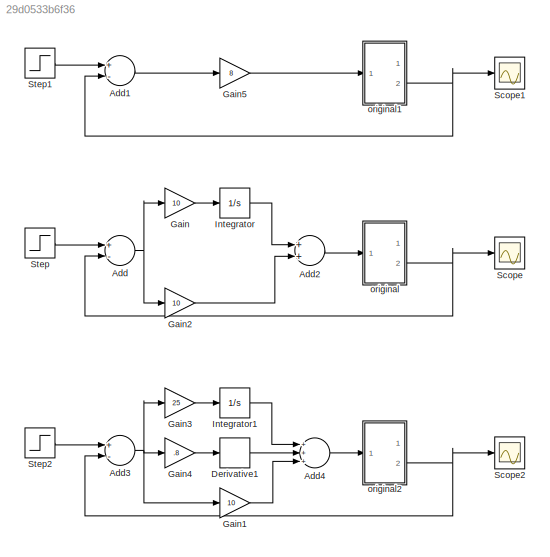
MODEL slx_29d0533b6f36
KIND model
CONFIG AbsTol = auto
CONFIG EnableMultiTasking = off
CONFIG FixedStep = auto
CONFIG MaxStep = auto
CONFIG MinStep = auto
CONFIG RelTol = 1e-3
CONFIG SampleTimeConstraint = Unconstrained
CONFIG Solver = VariableStepAuto
CONFIG SolverName = VariableStepAuto
CONFIG StartTime = 0.0
CONFIG StopTime = 3.0
BLOCK [Sum] Add
  InputSameDT = off
  Inputs = +-
  OutDataTypeStr = Inherit: Inherit via internal rule
  Ports = [2, 1]
  SaturateOnIntegerOverflow = off
BLOCK [Sum] Add1
  InputSameDT = off
  Inputs = +-
  OutDataTypeStr = Inherit: Inherit via internal rule
  Ports = [2, 1]
  SaturateOnIntegerOverflow = off
BLOCK [Sum] Add2
  InputSameDT = off
  OutDataTypeStr = Inherit: Inherit via internal rule
  Ports = [2, 1]
  SaturateOnIntegerOverflow = off
BLOCK [Sum] Add3
  InputSameDT = off
  Inputs = +-
  OutDataTypeStr = Inherit: Inherit via internal rule
  Ports = [2, 1]
  SaturateOnIntegerOverflow = off
BLOCK [Sum] Add4
  InputSameDT = off
  Inputs = +++
  OutDataTypeStr = Inherit: Inherit via internal rule
  Ports = [3, 1]
  SaturateOnIntegerOverflow = off
BLOCK [Derivative] Derivative1
BLOCK [Gain] Gain
  Gain = 10
  OutDataTypeStr = Inherit: Inherit via internal rule
  ParamDataTypeStr = Inherit: Inherit via internal rule
  SaturateOnIntegerOverflow = off
BLOCK [Gain] Gain1
  Gain = 10
  OutDataTypeStr = Inherit: Inherit via internal rule
  ParamDataTypeStr = Inherit: Inherit via internal rule
  SaturateOnIntegerOverflow = off
BLOCK [Gain] Gain2
  Gain = 10
  OutDataTypeStr = Inherit: Inherit via internal rule
  ParamDataTypeStr = Inherit: Inherit via internal rule
  SaturateOnIntegerOverflow = off
BLOCK [Gain] Gain3
  Gain = 25
  OutDataTypeStr = Inherit: Inherit via internal rule
  ParamDataTypeStr = Inherit: Inherit via internal rule
  SaturateOnIntegerOverflow = off
BLOCK [Gain] Gain4
  Gain = .8
  OutDataTypeStr = Inherit: Inherit via internal rule
  ParamDataTypeStr = Inherit: Inherit via internal rule
  SaturateOnIntegerOverflow = off
BLOCK [Gain] Gain5
  Gain = 8
  OutDataTypeStr = Inherit: Inherit via internal rule
  ParamDataTypeStr = Inherit: Inherit via internal rule
  SaturateOnIntegerOverflow = off
BLOCK [Integrator] Integrator
  Ports = [1, 1]
BLOCK [Integrator] Integrator1
  Ports = [1, 1]
BLOCK [Scope] Scope
  NumInputPorts = 1
  Ports = [1]
  ScopeSpecificationString = Simulink.scopes.TimeScopeBlockCfg('CurrentConfiguration', extmgr.ConfigurationSet(extmgr.Configuration('Core','General UI',true),extmgr.Configuration('Core','Source UI',true),extmgr.Configuration('Sources','WiredSimulink',true),extmgr.Configuration('Visuals','Time Domain',true,'SerializedDisplays',{struct('MinYLimReal','-0.13288','MaxYLimReal','1.1959','YLabelReal','','MinYLimMag','0.00000','MaxYL...<+1355ch>
BLOCK [Scope] Scope1
  NumInputPorts = 1
  Ports = [1]
  ScopeSpecificationString = Simulink.scopes.TimeScopeBlockCfg('CurrentConfiguration', extmgr.ConfigurationSet(extmgr.Configuration('Core','General UI',true),extmgr.Configuration('Core','Source UI',true),extmgr.Configuration('Sources','WiredSimulink',true,'DataLoggingVariableName','ScopeData1'),extmgr.Configuration('Visuals','Time Domain',true,'SerializedDisplays',{struct('MinYLimReal','-0.12294','MaxYLimReal','1.10647','YLab...<+1424ch>
BLOCK [Scope] Scope2
  NumInputPorts = 1
  Ports = [1]
  ScopeSpecificationString = Simulink.scopes.TimeScopeBlockCfg('CurrentConfiguration', extmgr.ConfigurationSet(extmgr.Configuration('Core','General UI',true),extmgr.Configuration('Core','Source UI',true),extmgr.Configuration('Sources','WiredSimulink',true,'DataLoggingVariableName','ScopeData2'),extmgr.Configuration('Visuals','Time Domain',true,'SerializedDisplays',{struct('MinYLimReal','-0.13386','MaxYLimReal','1.20476','YLab...<+1399ch>
BLOCK [Step] Step
  SampleTime = 1
BLOCK [Step] Step1
  SampleTime = 1
BLOCK [Step] Step2
  SampleTime = 1
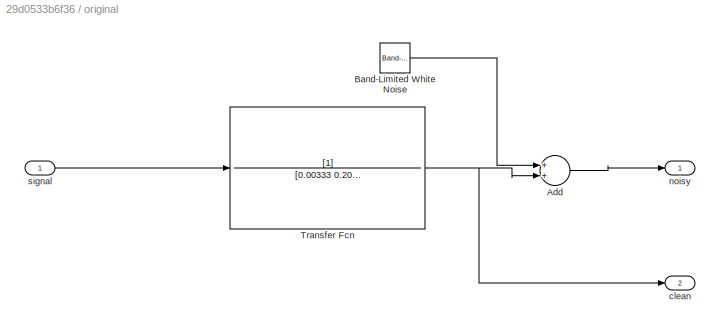
BLOCK [SubSystem] original
  Ports = [1, 2]
  RequestExecContextInheritance = off
  Variant = off
BLOCK [Sum] original/Add
  InputSameDT = off
  OutDataTypeStr = Inherit: Inherit via internal rule
  Ports = [2, 1]
  SaturateOnIntegerOverflow = off
BLOCK [Reference] original/Band-Limited White Noise  REF=simulink/Sources/Band-Limited
White Noise
  Ports = [0, 1]
  SourceBlock = simulink/Sources/Band-Limited\nWhite Noise
  SourceProductBaseCode = SL
  SourceProductName = Simulink
  SourceType = Band-Limited White Noise.
BLOCK [TransferFcn] original/Transfer Fcn
  Denominator = [0.00333 0.201 1]
BLOCK [Outport] original/clean
  IconDisplay = Port number
  Port = 2
BLOCK [Outport] original/noisy
  IconDisplay = Port number
BLOCK [Inport] original/signal
  IconDisplay = Port number
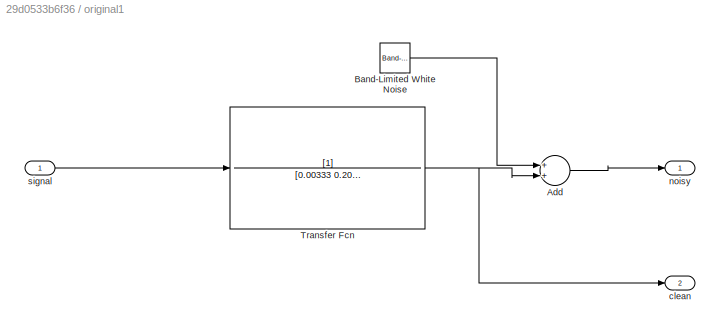
BLOCK [SubSystem] original1
  Ports = [1, 2]
  RequestExecContextInheritance = off
  Variant = off
BLOCK [Sum] original1/Add
  InputSameDT = off
  OutDataTypeStr = Inherit: Inherit via internal rule
  Ports = [2, 1]
  SaturateOnIntegerOverflow = off
BLOCK [Reference] original1/Band-Limited White Noise  REF=simulink/Sources/Band-Limited
White Noise
  Ports = [0, 1]
  SourceBlock = simulink/Sources/Band-Limited\nWhite Noise
  SourceProductBaseCode = SL
  SourceProductName = Simulink
  SourceType = Band-Limited White Noise.
BLOCK [TransferFcn] original1/Transfer Fcn
  Denominator = [0.00333 0.201 1]
BLOCK [Outport] original1/clean
  IconDisplay = Port number
  Port = 2
BLOCK [Outport] original1/noisy
  IconDisplay = Port number
BLOCK [Inport] original1/signal
  IconDisplay = Port number
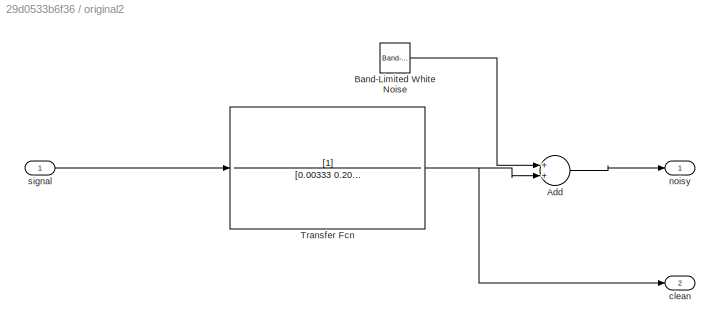
BLOCK [SubSystem] original2
  Ports = [1, 2]
  RequestExecContextInheritance = off
  Variant = off
BLOCK [Sum] original2/Add
  InputSameDT = off
  OutDataTypeStr = Inherit: Inherit via internal rule
  Ports = [2, 1]
  SaturateOnIntegerOverflow = off
BLOCK [Reference] original2/Band-Limited White Noise  REF=simulink/Sources/Band-Limited
White Noise
  Ports = [0, 1]
  SourceBlock = simulink/Sources/Band-Limited\nWhite Noise
  SourceProductBaseCode = SL
  SourceProductName = Simulink
  SourceType = Band-Limited White Noise.
BLOCK [TransferFcn] original2/Transfer Fcn
  Denominator = [0.00333 0.201 1]
BLOCK [Outport] original2/clean
  IconDisplay = Port number
  Port = 2
BLOCK [Outport] original2/noisy
  IconDisplay = Port number
BLOCK [Inport] original2/signal
  IconDisplay = Port number
LINE Add1:1 -> Gain5:1
LINE Add2:1 -> original:1
NET Add3:1 -> Gain1:1, Gain3:1, Gain4:1
LINE Add4:1 -> original2:1
NET Add:1 -> Gain2:1, Gain:1
LINE Derivative1:1 -> Add4:2
LINE Gain1:1 -> Add4:3
LINE Gain2:1 -> Add2:2
LINE Gain3:1 -> Integrator1:1
LINE Gain4:1 -> Derivative1:1
LINE Gain5:1 -> original1:1
LINE Gain:1 -> Integrator:1
LINE Integrator1:1 -> Add4:1
LINE Integrator:1 -> Add2:1
LINE Step1:1 -> Add1:1
LINE Step2:1 -> Add3:1
LINE Step:1 -> Add:1
LINE original/Add:1 -> original/noisy:1
LINE original/Band-Limited White Noise:1 -> original/Add:1
NET original/Transfer Fcn:1 -> original/Add:2, original/clean:1
LINE original/signal:1 -> original/Transfer Fcn:1
LINE original1/Add:1 -> original1/noisy:1
LINE original1/Band-Limited White Noise:1 -> original1/Add:1
NET original1/Transfer Fcn:1 -> original1/Add:2, original1/clean:1
LINE original1/signal:1 -> original1/Transfer Fcn:1
NET original1:2 -> Add1:2, Scope1:1
LINE original2/Add:1 -> original2/noisy:1
LINE original2/Band-Limited White Noise:1 -> original2/Add:1
NET original2/Transfer Fcn:1 -> original2/Add:2, original2/clean:1
LINE original2/signal:1 -> original2/Transfer Fcn:1
NET original2:2 -> Add3:2, Scope2:1
NET original:2 -> Add:2, Scope:1
note: NET lines group one-source signal fan-out (src -> all destinations, sorted); 1:1 wires keep LINE
